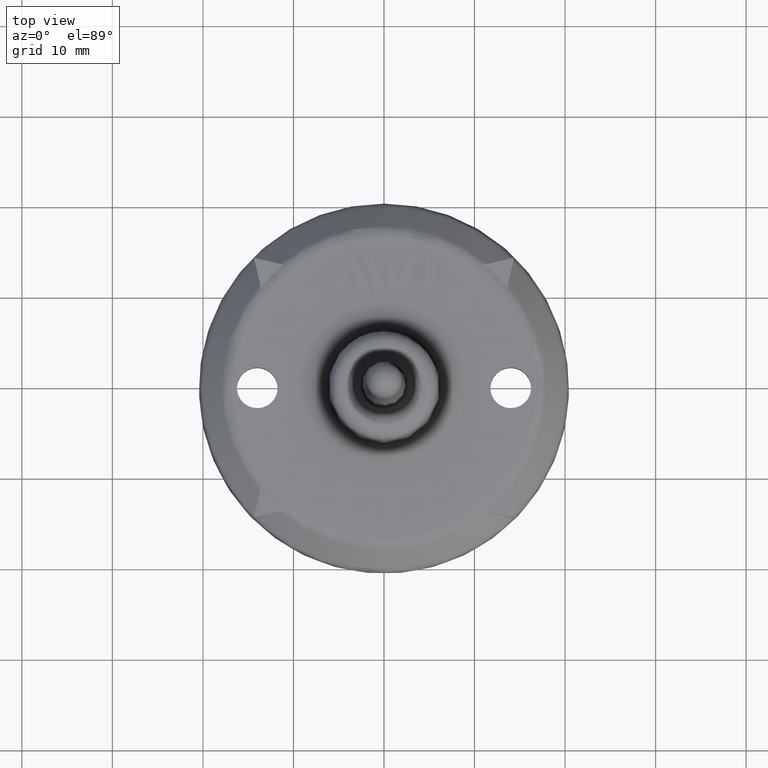
[diagram: clean part render]
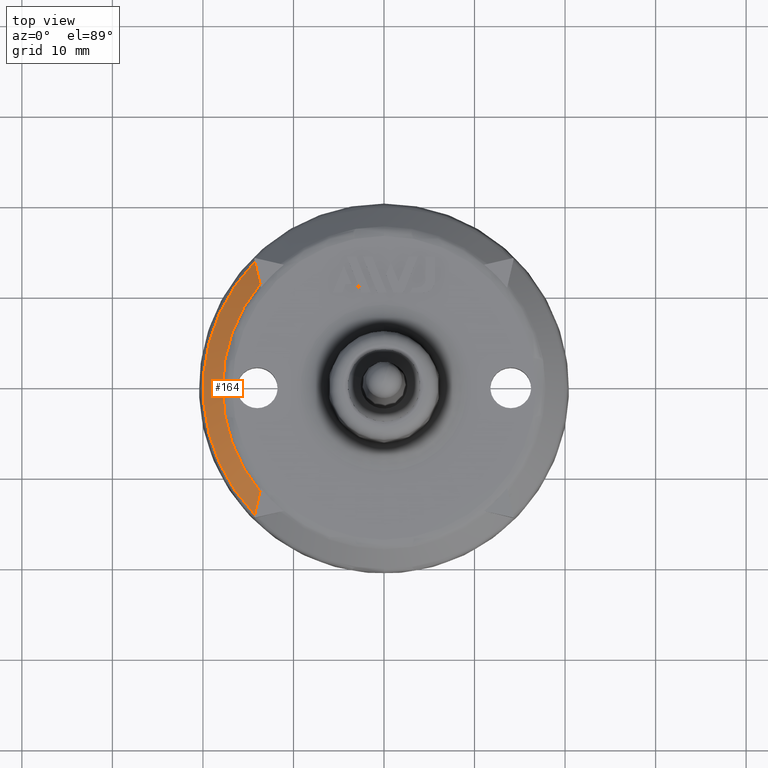
[diagram: same view with one face highlighted and labeled with its STEP entity id]
A machine part, top view. The second image highlights one B-rep face of the part: STEP entity #164.
In plain terms, the highlighted conical surface has half-angle 45.019 deg.
Its self-contained STEP definition (entity closure, byte-faithful):
#164 = ADVANCED_FACE( '', ( #333 ), #334, .T. );
#333 = FACE_OUTER_BOUND( '', #609, .T. );
#334 = CONICAL_SURFACE( '', #610, 17.4014445000000, 0.785725924775414 );
#609 = EDGE_LOOP( '', ( #1108, #1109, #1110, #1111 ) );
#610 = AXIS2_PLACEMENT_3D( '', #1112, #1113, #1114 );
#1108 = ORIENTED_EDGE( '', *, *, #1820, .T. );
#1109 = ORIENTED_EDGE( '', *, *, #1821, .T. );
#1110 = ORIENTED_EDGE( '', *, *, #1822, .T. );
#1111 = ORIENTED_EDGE( '', *, *, #1823, .T. );
#1112 = CARTESIAN_POINT( '', ( -5.62362310549768E-032, 9.18437682108149E-016, 4.99990700000001 ) );
#1113 = DIRECTION( '', ( 1.12474554136660E-032, -1.83690953073357E-016, -1.00000000000000 ) );
#1114 = DIRECTION( '', ( -6.12303176911189E-017, 1.00000000000000, -1.83690953073357E-016 ) );
#1820 = EDGE_CURVE( '', #2192, #2193, #2194, .T. );
#1821 = EDGE_CURVE( '', #2193, #2195, #2196, .F. );
#1822 = EDGE_CURVE( '', #2195, #2197, #2198, .T. );
#1823 = EDGE_CURVE( '', #2197, #2192, #2199, .T. );
#2192 = VERTEX_POINT( '', #2815 );
#2193 = VERTEX_POINT( '', #2816 );
#2194 = B_SPLINE_CURVE_WITH_KNOTS( '', 3, ( #2817, #2818, #2819, #2820 ), .UNSPECIFIED., .F., .F., ( 4, 4 ), ( 3.05060832801747E-007, 0.00335306184498531 ), .UNSPECIFIED. );
#2195 = VERTEX_POINT( '', #2821 );
#2196 = CIRCLE( '', #2822, 17.8415794446095 );
#2197 = VERTEX_POINT( '', #2823 );
#2198 = B_SPLINE_CURVE_WITH_KNOTS( '', 3, ( #2824, #2825, #2826, #2827 ), .UNSPECIFIED., .F., .F., ( 4, 4 ), ( 0.000385435633005935, 0.00373819253285394 ), .UNSPECIFIED. );
#2199 = CIRCLE( '', #2828, 19.9697122692104 );
#2815 = CARTESIAN_POINT( '', ( -14.2726877393033, -13.9670967925117, 2.43332223719148 ) );
#2816 = CARTESIAN_POINT( '', ( -13.6898716455001, -11.4415633288482, 4.56006047933854 ) );
#2817 = CARTESIAN_POINT( '', ( -14.2726877393033, -13.9670967925117, 2.43332223719148 ) );
#2818 = CARTESIAN_POINT( '', ( -14.0804042452372, -13.1338692891234, 3.15304951781219 ) );
#2819 = CARTESIAN_POINT( '', ( -13.8864187579170, -12.2932664902280, 3.86352061624889 ) );
#2820 = CARTESIAN_POINT( '', ( -13.6898716455001, -11.4415633288482, 4.56006047933854 ) );
#2821 = CARTESIAN_POINT( '', ( -13.6898716497305, 11.4415633237865, 4.56006047933853 ) );
#2822 = AXIS2_PLACEMENT_3D( '', #3366, #3367, #3368 );
#2823 = CARTESIAN_POINT( '', ( -14.2726875503153, 13.9670969856347, 2.43332223719148 ) );
#2824 = CARTESIAN_POINT( '', ( -13.6898716497305, 11.4415633237865, 4.56006047933853 ) );
#2825 = CARTESIAN_POINT( '', ( -13.8864186976419, 12.2932665548397, 3.86352062125518 ) );
#2826 = CARTESIAN_POINT( '', ( -14.0804041205561, 13.1338694192880, 3.15304952212042 ) );
#2827 = CARTESIAN_POINT( '', ( -14.2726875503153, 13.9670969856347, 2.43332223719148 ) );
#2828 = AXIS2_PLACEMENT_3D( '', #3369, #3370, #3371 );
#3366 = CARTESIAN_POINT( '', ( -5.12890769249807E-032, 8.37641855521842E-016, 4.56006047933853 ) );
#3367 = DIRECTION( '', ( -1.12474554136660E-032, 1.83690953073357E-016, 1.00000000000000 ) );
#3368 = DIRECTION( '', ( 6.12303176911189E-017, -1.00000000000000, 1.83690953073357E-016 ) );
#3369 = CARTESIAN_POINT( '', ( -2.73686833698932E-032, 4.46979280884295E-016, 2.43332223719148 ) );
#3370 = DIRECTION( '', ( -1.12474554136660E-032, 1.83690953073357E-016, 1.00000000000000 ) );
#3371 = DIRECTION( '', ( 6.12303176911189E-017, -1.00000000000000, 1.83690953073357E-016 ) );